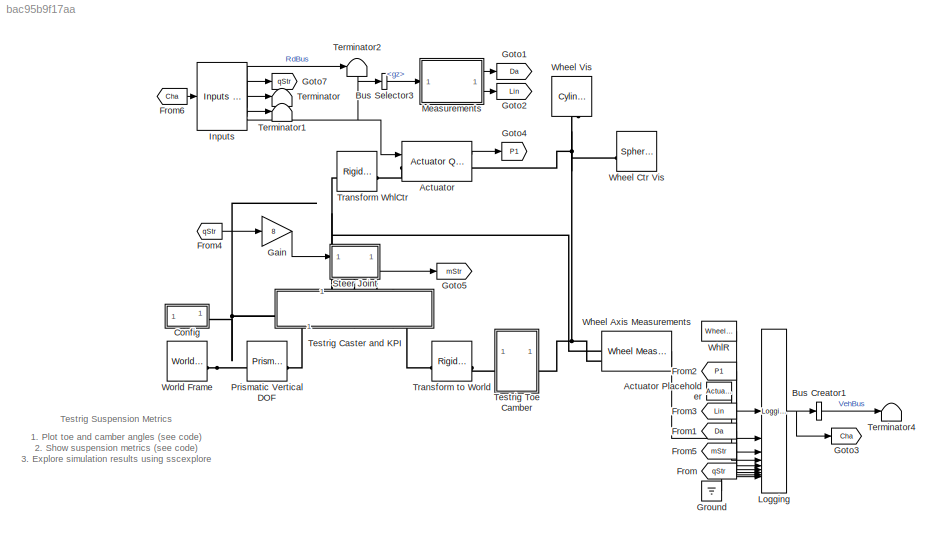
MODEL slx_bac95b9f17aa
KIND model
CONFIG AbsTol = 1e-3
CONFIG EnableMultiTasking = on
CONFIG FixedStep = auto
CONFIG MaxStep = 0.01
CONFIG MinStep = auto
CONFIG PostLoadFcn = Maneuver = MDatabase.KnC.Sedan_HambaLG;
CONFIG RelTol = 1e-3
CONFIG SampleTimeConstraint = Unconstrained
CONFIG SolverName = ode23t
CONFIG StartTime = 0.0
CONFIG StopTime = 309
BLOCK [Reference] Actuator  REF=sm_car_testrig_utilities_lib/Actuator  (lib defined in slx_fb23fd4a23dd)
Quarter Car
  SourceBlock = sm_car_testrig_utilities_lib/Actuator\nQuarter Car
BLOCK [Reference] Actuator Placeholder  REF=sm_car_testrig_utilities_lib/Actuator  (lib defined in slx_fb23fd4a23dd)
Placeholder
  SourceBlock = sm_car_testrig_utilities_lib/Actuator\nPlaceholder
  SourceType = SubSystem
BLOCK [BusCreator] Bus Creator1
  DisplayOption = bar
  InheritFromInputs = on
  Inputs = 1
  NameLocation = left
BLOCK [BusSelector] Bus Selector3
  OutputSignals = gz
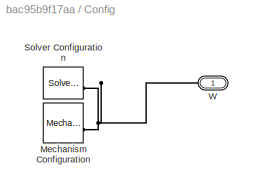
BLOCK [SubSystem] Config
BLOCK [Reference] Config/Mechanism Configuration  REF=sm_lib/Utilities/Mechanism
Configuration
  SourceBlock = sm_lib/Utilities/Mechanism\nConfiguration
  SourceType = Mechanism\nConfiguration
BLOCK [Reference] Config/Solver Configuration  REF=nesl_utility/Solver
Configuration
  SourceBlock = nesl_utility/Solver\nConfiguration
  SourceType = Solver\nConfiguration
BLOCK [PMIOPort] Config/W
  Side = Right
BLOCK [From] From
  GotoTag = qStr
BLOCK [From] From1
  GotoTag = Da
BLOCK [From] From2
  GotoTag = P1
BLOCK [From] From3
  GotoTag = Lin
BLOCK [From] From4
  GotoTag = qStr
BLOCK [From] From5
  GotoTag = mStr
BLOCK [From] From6
  GotoTag = Cha
BLOCK [Gain] Gain
  Gain = 8
BLOCK [Goto] Goto1
  GotoTag = Da
  NameLocation = top
BLOCK [Goto] Goto2
  GotoTag = Lin
  NameLocation = top
BLOCK [Goto] Goto3
  GotoTag = Cha
BLOCK [Goto] Goto4
  GotoTag = P1
BLOCK [Goto] Goto5
  GotoTag = mStr
  NameLocation = top
BLOCK [Goto] Goto7
  GotoTag = qStr
  NameLocation = top
BLOCK [Ground] Ground
BLOCK [Reference] Inputs  REF=sm_car_testrig_utilities_lib/Inputs Quarter Car  (lib defined in slx_fb23fd4a23dd)
  SourceBlock = sm_car_testrig_utilities_lib/Inputs Quarter Car
BLOCK [Reference] Logging  REF=sm_car_testrig_utilities_lib/Logging  (lib defined in slx_fb23fd4a23dd)
Quarter Car
  SourceBlock = sm_car_testrig_utilities_lib/Logging\nQuarter Car
  SourceType = Logging Structure
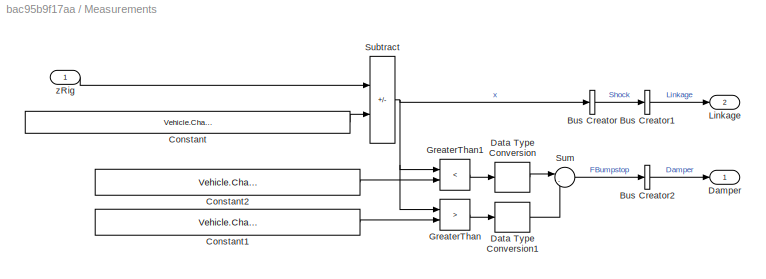
BLOCK [SubSystem] Measurements
BLOCK [BusCreator] Measurements/Bus Creator
  DisplayOption = bar
  InheritFromInputs = on
  Inputs = 1
BLOCK [BusCreator] Measurements/Bus Creator1
  DisplayOption = bar
  InheritFromInputs = on
  Inputs = 1
BLOCK [BusCreator] Measurements/Bus Creator2
  DisplayOption = bar
  InheritFromInputs = on
  Inputs = 1
BLOCK [Constant] Measurements/Constant
  Value = Vehicle.Chassis.SuspA1.Linkage.Upright.sWheelCentre.Value(3)
BLOCK [Constant] Measurements/Constant1
  Value = Vehicle.Chassis.Damper.Axle1.Endstop.xMax.Value
BLOCK [Constant] Measurements/Constant2
  Value = Vehicle.Chassis.Damper.Axle1.Endstop.xMin.Value
BLOCK [Outport] Measurements/Damper
BLOCK [DataTypeConversion] Measurements/Data Type Conversion
  OutDataTypeStr = double
  RndMeth = Floor
  SaturateOnIntegerOverflow = off
BLOCK [DataTypeConversion] Measurements/Data Type Conversion1
  OutDataTypeStr = double
  RndMeth = Floor
  SaturateOnIntegerOverflow = off
BLOCK [RelationalOperator] Measurements/GreaterThan
  InputSameDT = off
  Operator = >
  OutDataTypeStr = boolean
  RndMeth = Simplest
BLOCK [RelationalOperator] Measurements/GreaterThan1
  InputSameDT = off
  Operator = <
  OutDataTypeStr = boolean
  RndMeth = Simplest
BLOCK [Outport] Measurements/Linkage
  Port = 2
BLOCK [Sum] Measurements/Subtract
  IconShape = rectangular
  Inputs = +-
BLOCK [Sum] Measurements/Sum
  Inputs = |-+
BLOCK [Inport] Measurements/zRig
BLOCK [Reference] Prismatic Vertical DOF  REF=sm_lib/Joints/Prismatic
Joint
  SourceBlock = sm_lib/Joints/Prismatic\nJoint
  SourceType = Prismatic\nJoint
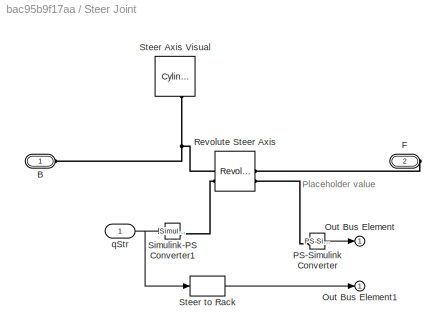
BLOCK [SubSystem] Steer Joint
  PortSchema = {"entries":[{"content":{"sides":[{"content":{"connectorIds":["LConn1"]},"type":"ConnectorPlacement.EquallySpacedRectSide","uuid":"c6bcf25b-d906-4954-990b-54daf7e75c46"},{"content":{"connectorIds":["RConn1","Out1"],"side":"RIGHT"},"type":"ConnectorPlacement.EquallySpacedRectSide","uuid":"9db478a6-4a36-4e7a-9741-5384e6e9f750"},{"content":{"connectorIds":["In1"],"side":"TOP"},"type":"ConnectorPlaceme...<+257ch>
BLOCK [PMIOPort] Steer Joint/B
  Side = Left
BLOCK [PMIOPort] Steer Joint/F
  Port = 2
  Side = Right
BLOCK [Outport] Steer Joint/Out Bus Element
  VectorParamsAs1DForOutWhenUnconnected = off
BLOCK [Outport] Steer Joint/Out Bus Element1
  VectorParamsAs1DForOutWhenUnconnected = off
BLOCK [Reference] Steer Joint/PS-Simulink Converter  REF=nesl_utility/PS-Simulink
Converter
  SourceBlock = nesl_utility/PS-Simulink\nConverter
  SourceType = PS-Simulink\nConverter
BLOCK [Reference] Steer Joint/Revolute Steer Axis  REF=sm_lib/Joints/Revolute Joint
  SourceBlock = sm_lib/Joints/Revolute Joint
  SourceType = Revolute Joint
BLOCK [Reference] Steer Joint/Simulink-PS Converter1  REF=nesl_utility/Simulink-PS
Converter
  SourceBlock = nesl_utility/Simulink-PS\nConverter
  SourceType = Simulink-PS\nConverter
BLOCK [Reference] Steer Joint/Steer Axis Visual  REF=sm_lib/Body Elements/Cylindrical Solid
  NameLocation = left
  SourceBlock = sm_lib/Body Elements/Cylindrical Solid
  SourceType = Cylindrical Solid
BLOCK [Lookup_n-D] Steer Joint/Steer to Rack
  BreakpointsForDimension1 = Vehicle.Chassis.SuspA1.Steer.Ratio_Table.aWheel.Value
  InputPortMap = u0
  InternalRulePriority = Speed
  NumberOfTableDimensions = 1
  RndMeth = Simplest
  Table = Vehicle.Chassis.SuspA1.Steer.Ratio_Table.xRack.Value
BLOCK [Inport] Steer Joint/qStr
BLOCK [Terminator] Terminator
BLOCK [Terminator] Terminator1
BLOCK [Terminator] Terminator2
  NameLocation = top
BLOCK [Terminator] Terminator4
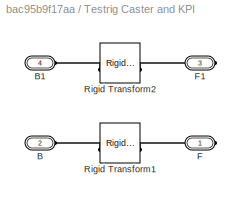
BLOCK [SubSystem] Testrig Caster and KPI
  AttributesFormatString = Caster Angle: %<qCaster> (deg)\nSteering Inclination: %<qKP> (deg)
BLOCK [PMIOPort] Testrig Caster and KPI/B
  Port = 2
  Side = Left
BLOCK [PMIOPort] Testrig Caster and KPI/B1
  Port = 4
  Side = Left
BLOCK [PMIOPort] Testrig Caster and KPI/F
  Side = Right
BLOCK [PMIOPort] Testrig Caster and KPI/F1
  Port = 3
  Side = Right
BLOCK [Reference] Testrig Caster and KPI/Rigid Transform1  REF=sm_lib/Frames and
Transforms/Rigid
Transform
  SourceBlock = sm_lib/Frames and\nTransforms/Rigid\nTransform
  SourceType = Rigid\nTransform
BLOCK [Reference] Testrig Caster and KPI/Rigid Transform2  REF=sm_lib/Frames and
Transforms/Rigid
Transform
  SourceBlock = sm_lib/Frames and\nTransforms/Rigid\nTransform
  SourceType = Rigid\nTransform
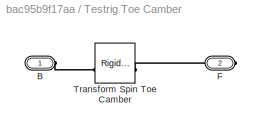
BLOCK [SubSystem] Testrig Toe Camber
  AttributesFormatString = Toe at design position: %<qToe> (deg)\nCamber at design position: %<qCamber> (deg)
BLOCK [PMIOPort] Testrig Toe Camber/B
  Side = Left
BLOCK [PMIOPort] Testrig Toe Camber/F
  Port = 2
  Side = Right
BLOCK [Reference] Testrig Toe Camber/Transform Spin Toe Camber  REF=sm_lib/Frames and
Transforms/Rigid
Transform
  SourceBlock = sm_lib/Frames and\nTransforms/Rigid\nTransform
  SourceType = Rigid\nTransform
BLOCK [Reference] Transform WhlCtr  REF=sm_lib/Frames and
Transforms/Rigid
Transform
  SourceBlock = sm_lib/Frames and\nTransforms/Rigid\nTransform
  SourceType = Rigid\nTransform
BLOCK [Reference] Transform to World  REF=sm_lib/Frames and
Transforms/Rigid
Transform
  SourceBlock = sm_lib/Frames and\nTransforms/Rigid\nTransform
  SourceType = Rigid\nTransform
BLOCK [Reference] Wheel Axis Measurements  REF=Suspension_Utilities/Wheel Measurements
  AttributesFormatString = %<popup_leftRight>
  SourceBlock = Suspension_Utilities/Wheel Measurements
  SourceType = Wheel Measurements
BLOCK [Reference] Wheel Ctr Vis  REF=sm_lib/Body Elements/Spherical Solid
  SourceBlock = sm_lib/Body Elements/Spherical Solid
  SourceType = Spherical Solid
BLOCK [Reference] Wheel Vis  REF=sm_lib/Body Elements/Cylindrical Solid
  NameLocation = right
  SourceBlock = sm_lib/Body Elements/Cylindrical Solid
  SourceType = Cylindrical Solid
BLOCK [Reference] WhlR  REF=sm_car_testrig_utilities_lib/Wheel Measurements  (lib defined in slx_fb23fd4a23dd)
Placeholder
  NameLocation = top
  SourceBlock = sm_car_testrig_utilities_lib/Wheel Measurements\nPlaceholder
  SourceType = SubSystem
BLOCK [Reference] World Frame  REF=sm_lib/Frames and
Transforms/World Frame
  SourceBlock = sm_lib/Frames and\nTransforms/World Frame
  SourceType = World Frame
ANNOTATION (root): 1. Plot toe and camber angles ( see code ) 2. Show suspension metrics ( see code ) 3. Explore simulation results using sscexplore
ANNOTATION (root): Testrig Suspension Metrics
ANNOTATION Steer Joint: Placeholder value
LINE Actuator Placeholder:1 -> Logging:4
LINE Actuator:1 -> Goto4:1
LINE Bus Creator1:1 -> Terminator4:1
LINE Bus Selector3:1 -> Measurements:1
LINE From1:1 -> Logging:6
LINE From2:1 -> Logging:3
LINE From3:1 -> Logging:5
LINE From4:1 -> Gain:1
LINE From5:1 -> Logging:7
LINE From6:1 -> Inputs:1
LINE From:1 -> Logging:8
LINE Gain:1 -> Steer Joint:1
LINE Ground:1 -> Logging:9
LINE Inputs:1 -> Terminator2:1
LINE Inputs:2 -> Goto7:1
LINE Inputs:3 -> Terminator:1
LINE Inputs:4 -> Terminator1:1
NET Inputs:5 -> Actuator:1, Bus Selector3:1
NET Logging:1 -> Bus Creator1:1, Goto3:1
LINE Measurements/Bus Creator1:1 -> Measurements/Linkage:1
LINE Measurements/Bus Creator2:1 -> Measurements/Damper:1
LINE Measurements/Bus Creator:1 -> Measurements/Bus Creator1:1
LINE Measurements/Constant1:1 -> Measurements/GreaterThan:2
LINE Measurements/Constant2:1 -> Measurements/GreaterThan1:2
LINE Measurements/Constant:1 -> Measurements/Subtract:2
LINE Measurements/Data Type Conversion1:1 -> Measurements/Sum:2
LINE Measurements/Data Type Conversion:1 -> Measurements/Sum:1
LINE Measurements/GreaterThan1:1 -> Measurements/Data Type Conversion:1
LINE Measurements/GreaterThan:1 -> Measurements/Data Type Conversion1:1
NET Measurements/Subtract:1 -> Measurements/Bus Creator:1, Measurements/GreaterThan1:1, Measurements/GreaterThan:1
LINE Measurements/Sum:1 -> Measurements/Bus Creator2:1
LINE Measurements/zRig:1 -> Measurements/Subtract:1
LINE Measurements:1 -> Goto1:1
LINE Measurements:2 -> Goto2:1
LINE Steer Joint/PS-Simulink Converter:1 -> Steer Joint/Out Bus Element:1
LINE Steer Joint/Steer to Rack:1 -> Steer Joint/Out Bus Element1:1
NET Steer Joint/qStr:1 -> Steer Joint/Simulink-PS Converter1:1, Steer Joint/Steer to Rack:1
LINE Steer Joint:1 -> Goto5:1
LINE Wheel Axis Measurements:1 -> Logging:2
LINE WhlR:1 -> Logging:1
PLINE Actuator:LConn1 -- Transform WhlCtr:RConn1
PNET net1: Actuator:RConn1 -- Testrig Toe Camber:RConn1 -- Wheel Axis Measurements:LConn2 -- Wheel Ctr Vis:RConn1 -- Wheel Vis:RConn1
PNET net2: Config/Mechanism Configuration:RConn1 -- Config/Solver Configuration:RConn1 -- Config/W:RConn1
PNET net3: Config:RConn1 -- Prismatic Vertical DOF:LConn1 -- Transform WhlCtr:LConn1 -- Wheel Axis Measurements:LConn1 -- World Frame:RConn1
PLINE Prismatic Vertical DOF:RConn1 -- Testrig Caster and KPI:LConn1
PNET net4: Steer Joint/B:RConn1 -- Steer Joint/Revolute Steer Axis:LConn1 -- Steer Joint/Steer Axis Visual:RConn1
PLINE Steer Joint/F:RConn1 -- Steer Joint/Revolute Steer Axis:RConn1
PLINE Steer Joint/PS-Simulink Converter:LConn1 -- Steer Joint/Revolute Steer Axis:RConn2
PLINE Steer Joint/Revolute Steer Axis:LConn2 -- Steer Joint/Simulink-PS Converter1:RConn1
PLINE Steer Joint:LConn1 -- Testrig Caster and KPI:RConn1
PLINE Steer Joint:RConn1 -- Testrig Caster and KPI:RConn2
PLINE Testrig Caster and KPI/B1:RConn1 -- Testrig Caster and KPI/Rigid Transform2:LConn1
PLINE Testrig Caster and KPI/B:RConn1 -- Testrig Caster and KPI/Rigid Transform1:LConn1
PLINE Testrig Caster and KPI/F1:RConn1 -- Testrig Caster and KPI/Rigid Transform2:RConn1
PLINE Testrig Caster and KPI/F:RConn1 -- Testrig Caster and KPI/Rigid Transform1:RConn1
PLINE Testrig Caster and KPI:LConn2 -- Transform to World:LConn1
PLINE Testrig Toe Camber/B:RConn1 -- Testrig Toe Camber/Transform Spin Toe Camber:LConn1
PLINE Testrig Toe Camber/F:RConn1 -- Testrig Toe Camber/Transform Spin Toe Camber:RConn1
PLINE Testrig Toe Camber:LConn1 -- Transform to World:RConn1
note: NET lines group one-source signal fan-out (src -> all destinations, sorted); 1:1 wires keep LINE; PNET lines group multi-terminal physical nets as a canonical sorted terminal list (undirected conserving connections); 2-terminal nets keep the pairwise PLINE form
